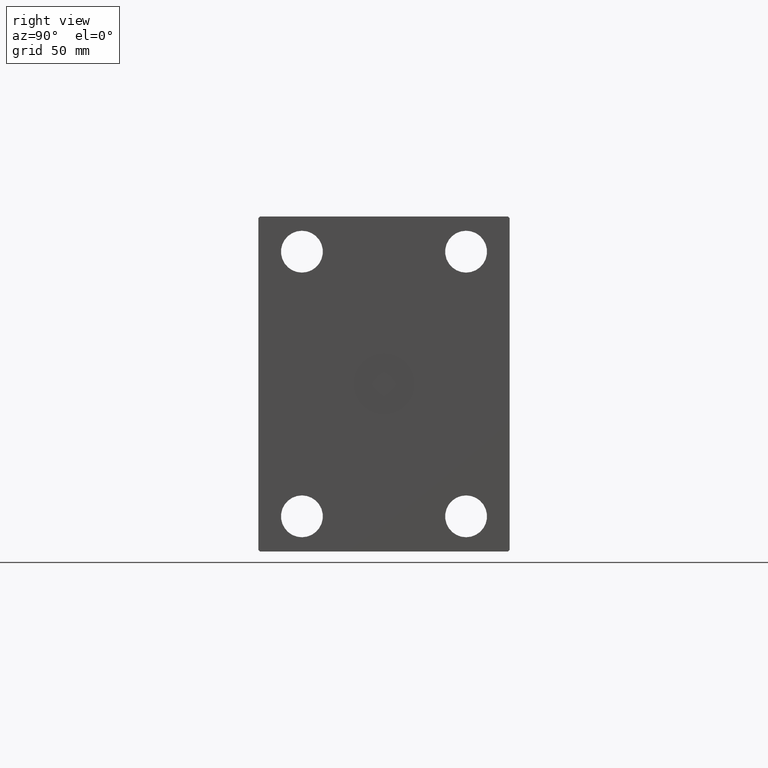
[diagram: clean part render]
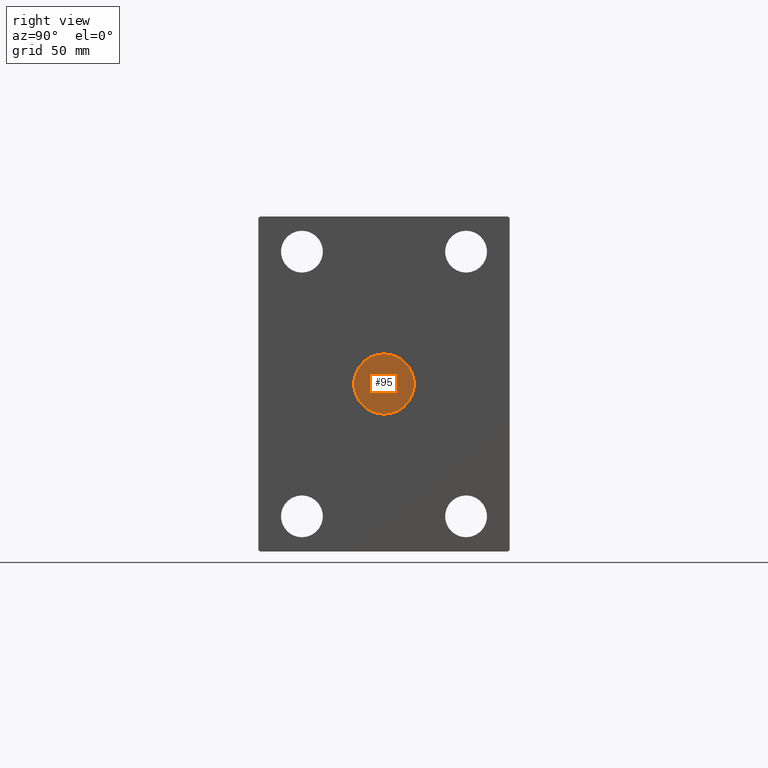
[diagram: same view with one face highlighted and labeled with its STEP entity id]
A machine part, right view. The second image highlights one B-rep face of the part: STEP entity #95.
In plain terms, the highlighted planar face has unit normal (1, 0, 0).
Its self-contained STEP definition (entity closure, byte-faithful):
#95 = ADVANCED_FACE ( 'NONE', ( #21094 ), #21537, .T. ) ;
#96 = EDGE_CURVE ( 'NONE', #2413, #15153, #34267, .T. ) ;
#2413 = VERTEX_POINT ( 'NONE', #28067 ) ;
#7985 = CARTESIAN_POINT ( 'NONE',  ( 357.8000000000000114, 0.000000000000000000, 0.000000000000000000 ) ) ;
#9100 = AXIS2_PLACEMENT_3D ( 'NONE', #17559, #20998, #17350 ) ;
#10045 = ORIENTED_EDGE ( 'NONE', *, *, #96, .T. ) ;
#12339 = EDGE_CURVE ( 'NONE', #15153, #2413, #20740, .T. ) ;
#15153 = VERTEX_POINT ( 'NONE', #25497 ) ;
#17350 = DIRECTION ( 'NONE',  ( 0.000000000000000000, 0.000000000000000000, -1.000000000000000000 ) ) ;
#17559 = CARTESIAN_POINT ( 'NONE',  ( 357.8000000000000114, 0.000000000000000000, 0.000000000000000000 ) ) ;
#19887 = EDGE_LOOP ( 'NONE', ( #10045, #28557 ) ) ;
#20740 = CIRCLE ( 'NONE', #9100, 18.00000000000000000 ) ;
#20998 = DIRECTION ( 'NONE',  ( 1.000000000000000000, 0.000000000000000000, 0.000000000000000000 ) ) ;
#21094 = FACE_OUTER_BOUND ( 'NONE', #19887, .T. ) ;
#21537 = PLANE ( 'NONE',  #22634 ) ;
#22634 = AXIS2_PLACEMENT_3D ( 'NONE', #37406, #37183, #27333 ) ;
#25497 = CARTESIAN_POINT ( 'NONE',  ( 357.8000000000000114, 2.204364238465235428E-15, 18.00000000000000000 ) ) ;
#27333 = DIRECTION ( 'NONE',  ( 0.000000000000000000, 0.000000000000000000, -1.000000000000000000 ) ) ;
#28067 = CARTESIAN_POINT ( 'NONE',  ( 357.8000000000000114, 0.000000000000000000, -18.00000000000000000 ) ) ;
#28557 = ORIENTED_EDGE ( 'NONE', *, *, #12339, .T. ) ;
#30968 = DIRECTION ( 'NONE',  ( 1.000000000000000000, 0.000000000000000000, 0.000000000000000000 ) ) ;
#34185 = DIRECTION ( 'NONE',  ( 0.000000000000000000, 0.000000000000000000, -1.000000000000000000 ) ) ;
#34267 = CIRCLE ( 'NONE', #42510, 18.00000000000000000 ) ;
#37183 = DIRECTION ( 'NONE',  ( 1.000000000000000000, 0.000000000000000000, 0.000000000000000000 ) ) ;
#37406 = CARTESIAN_POINT ( 'NONE',  ( 357.8000000000000114, 0.000000000000000000, 0.000000000000000000 ) ) ;
#42510 = AXIS2_PLACEMENT_3D ( 'NONE', #7985, #30968, #34185 ) ;